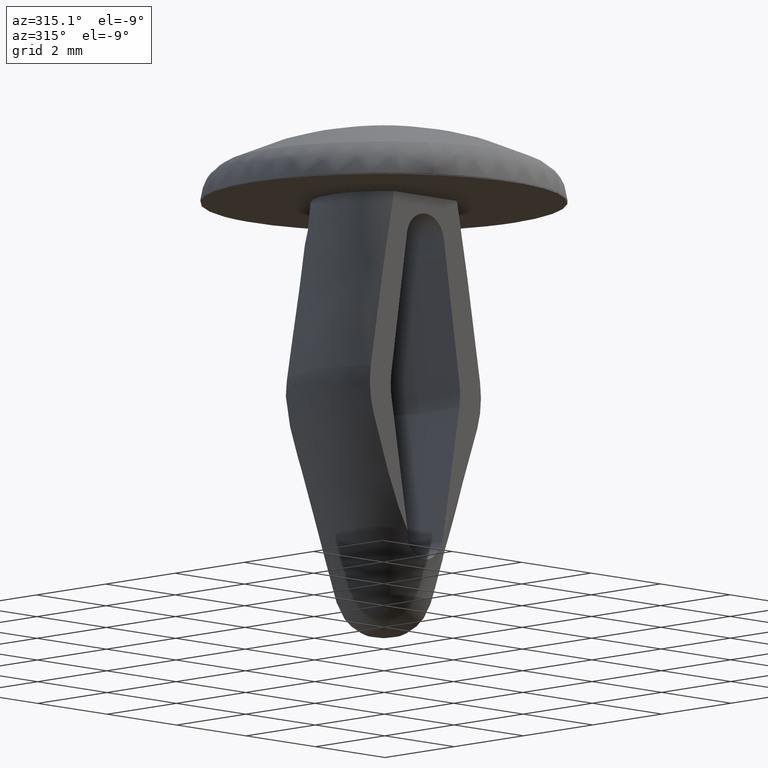
[diagram: clean part render]
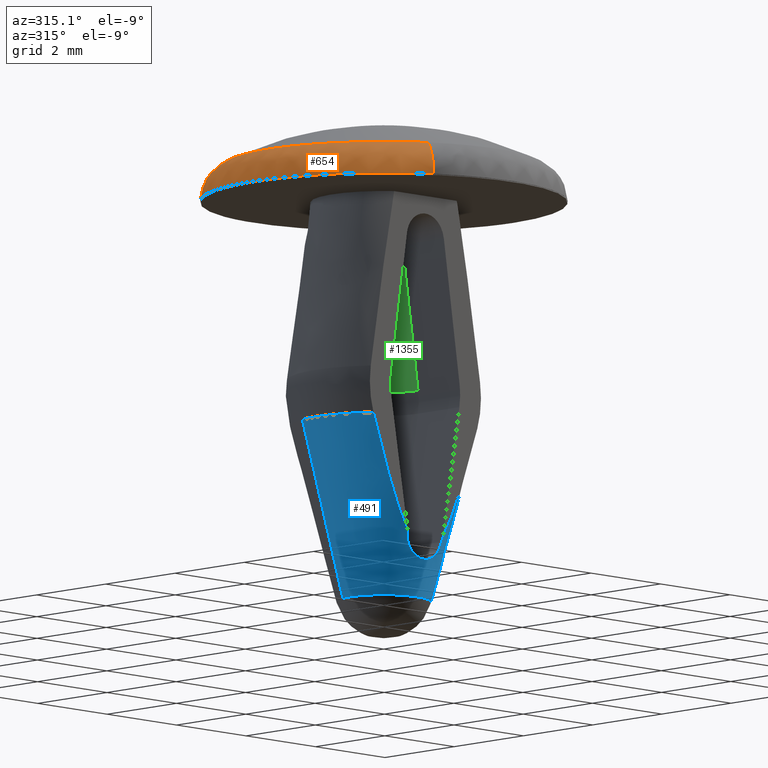
[diagram: same view with three faces highlighted in distinct colors, each labeled with its STEP entity id]
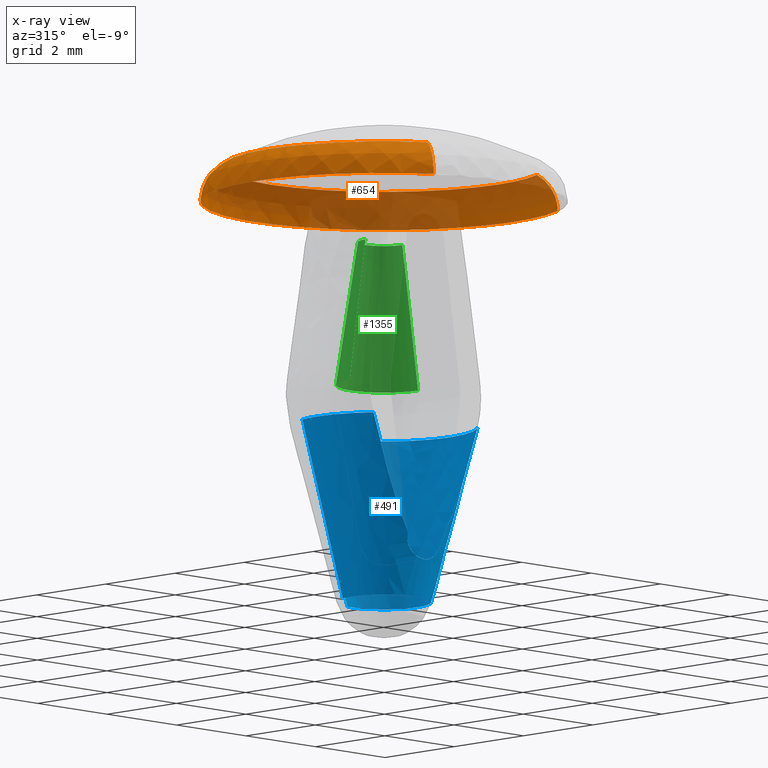
[diagram: x-ray of the same camera — body ghosted, the three highlighted faces saturated]
A machine part, auxiliary view with three faces highlighted in distinct colors.
The next image is the same camera in x-ray (body ghosted, the three faces saturated) — at least one of them is partly hidden behind the body in this view.
Their STEP definitions:

[orange] entity #654 — the highlighted face is a freeform B-spline surface patch.
#87=CARTESIAN_POINT('',(3.510539026099598,1.318565791391811,0.017877089325399));
#88=VERTEX_POINT('',#87);
#94=CARTESIAN_POINT('',(3.750000000000000,0.0,0.017877089325399));
#95=VERTEX_POINT('',#94);
#96=CARTESIAN_POINT('',(3.510539026099598,1.318565791391811,0.017877089325399));
#97=CARTESIAN_POINT('',(3.750000000000000,0.681026808057230,0.017877089325399));
#98=CARTESIAN_POINT('',(3.750000000000000,0.0,0.017877089325399));
#106=(BOUNDED_CURVE()B_SPLINE_CURVE(2,(#96,#97,#98),.UNSPECIFIED.,.F.,.U.)B_SPLINE_CURVE_WITH_KNOTS((3,3),(0.440284243453671,0.500000000000000),.UNSPECIFIED.)CURVE()GEOMETRIC_REPRESENTATION_ITEM()RATIONAL_B_SPLINE_CURVE((0.893499643425620,0.930038639405060,1.0))REPRESENTATION_ITEM(''));
#107=EDGE_CURVE('',#88,#95,#106,.T.);
#109=CARTESIAN_POINT('',(3.372770148349690,-1.639183186349112,0.017876415870131));
#110=VERTEX_POINT('',#109);
#111=CARTESIAN_POINT('',(3.750000000000000,0.0,0.017877089325399));
#112=CARTESIAN_POINT('',(3.750000000000000,-0.862998078234063,0.017877089325399));
#113=CARTESIAN_POINT('',(3.372770148349691,-1.639183186349112,0.017876415870131));
#121=(BOUNDED_CURVE()B_SPLINE_CURVE(2,(#111,#112,#113),.UNSPECIFIED.,.F.,.U.)B_SPLINE_CURVE_WITH_KNOTS((3,3),(0.500000000000000,0.574283252292223),.UNSPECIFIED.)CURVE()GEOMETRIC_REPRESENTATION_ITEM()RATIONAL_B_SPLINE_CURVE((1.0,0.912971756528796,0.877661440788156))REPRESENTATION_ITEM(''));
#122=EDGE_CURVE('',#95,#110,#121,.T.);
#124=CARTESIAN_POINT('',(-1.829396198044957,-3.273501113917875,0.017876435724999));
#125=VERTEX_POINT('',#124);
#141=CARTESIAN_POINT('',(-3.750000000000000,0.0,0.017877089325399));
#142=VERTEX_POINT('',#141);
#143=CARTESIAN_POINT('',(-1.829396198044957,-3.273501113917875,0.017876435724999));
#144=CARTESIAN_POINT('',(-3.750000000000000,-2.200171621396784,0.017877089325399));
#145=CARTESIAN_POINT('',(-3.750000000000000,0.0,0.017877089325399));
#153=(BOUNDED_CURVE()B_SPLINE_CURVE(2,(#143,#144,#145),.UNSPECIFIED.,.F.,.U.)B_SPLINE_CURVE_WITH_KNOTS((3,3),(0.833121380923220,1.0),.UNSPECIFIED.)CURVE()GEOMETRIC_REPRESENTATION_ITEM()RATIONAL_B_SPLINE_CURVE((0.869991202264870,0.804489536429831,1.0))REPRESENTATION_ITEM(''));
#154=EDGE_CURVE('',#125,#142,#153,.T.);
#156=CARTESIAN_POINT('',(-0.228929288348013,3.743005661354116,0.017877089325399));
#157=VERTEX_POINT('',#156);
#158=CARTESIAN_POINT('',(-3.750000000000000,0.0,0.017877089325399));
#159=CARTESIAN_POINT('',(-3.750000000000000,3.527650333265687,0.017877089325399));
#160=CARTESIAN_POINT('',(-0.228929288348013,3.743005661354115,0.017877089325399));
#168=(BOUNDED_CURVE()B_SPLINE_CURVE(2,(#158,#159,#160),.UNSPECIFIED.,.F.,.U.)B_SPLINE_CURVE_WITH_KNOTS((3,3),(0.0,0.239333088317014),.UNSPECIFIED.)CURVE()GEOMETRIC_REPRESENTATION_ITEM()RATIONAL_B_SPLINE_CURVE((1.0,0.719603845577062,0.976072311876173))REPRESENTATION_ITEM(''));
#169=EDGE_CURVE('',#142,#157,#168,.T.);
#241=CARTESIAN_POINT('',(-0.228929288348013,3.743005661354116,0.017877089325399));
#242=CARTESIAN_POINT('',(-0.114571491081727,3.750000000000000,0.017877089325399));
#243=CARTESIAN_POINT('',(0.0,3.750000000000000,0.017877089325399));
#244=CARTESIAN_POINT('',(2.597287258307362,3.750000000000000,0.017877089325399));
#245=CARTESIAN_POINT('',(3.510539026099598,1.318565791391811,0.017877089325399));
#253=(BOUNDED_CURVE()B_SPLINE_CURVE(2,(#241,#242,#243,#244,#245),.UNSPECIFIED.,.F.,.U.)B_SPLINE_CURVE_WITH_KNOTS((3,2,3),(0.239333088317014,0.250000000000000,0.440284243453671),.UNSPECIFIED.)CURVE()GEOMETRIC_REPRESENTATION_ITEM()RATIONAL_B_SPLINE_CURVE((0.976072311876173,0.987502935609486,1.0,0.777068141781487,0.893499643425620))REPRESENTATION_ITEM(''));
#254=EDGE_CURVE('',#157,#88,#253,.T.);
#543=CARTESIAN_POINT('',(-1.591512655966842,-2.847832264616427,0.755637287603313));
#544=CARTESIAN_POINT('',(-4.280872851317781,-1.344881813308519,0.755637287603313));
#545=CARTESIAN_POINT('',(-2.934193141263247,1.426033572976694,0.755637287603313));
#546=CARTESIAN_POINT('',(-1.508159568286553,4.360226714239937,0.755637287603313));
#547=CARTESIAN_POINT('',(1.426033572976693,2.934193141263247,0.755637287603313));
#548=CARTESIAN_POINT('',(4.360226714239937,1.508159568286554,0.755637287603313));
#549=CARTESIAN_POINT('',(2.934193141263247,-1.426033572976693,0.755637287603313));
#550=CARTESIAN_POINT('',(-1.843677931907815,-3.299053564144423,0.536403702894686));
#551=CARTESIAN_POINT('',(-4.959150513624517,-1.557969967078127,0.536403702894686));
#552=CARTESIAN_POINT('',(-3.399097784249745,1.651979718037227,0.536403702894686));
#553=CARTESIAN_POINT('',(-1.747118066212518,5.051077502286973,0.536403702894686));
#554=CARTESIAN_POINT('',(1.651979718037227,3.399097784249745,0.536403702894686));
#555=CARTESIAN_POINT('',(5.051077502286973,1.747118066212518,0.536403702894686));
#556=CARTESIAN_POINT('',(3.399097784249745,-1.651979718037227,0.536403702894686));
#557=CARTESIAN_POINT('',(-1.828823696632440,-3.272473586709232,-0.024242539129858));
#558=CARTESIAN_POINT('',(-4.919195385225735,-1.545417637822333,-0.024242539129858));
#559=CARTESIAN_POINT('',(-3.371711765608732,1.638669966384194,-0.024242539129858));
#560=CARTESIAN_POINT('',(-1.733041799224539,5.010381731992926,-0.024242539129858));
#561=CARTESIAN_POINT('',(1.638669966384193,3.371711765608732,-0.024242539129858));
#562=CARTESIAN_POINT('',(5.010381731992926,1.733041799224539,-0.024242539129858));
#563=CARTESIAN_POINT('',(3.371711765608732,-1.638669966384193,-0.024242539129858));
#571=(BOUNDED_SURFACE()B_SPLINE_SURFACE(2,2,((#543,#550,#557),(#544,#551,#558),(#545,#552,#559),(#546,#553,#560),(#547,#554,#561),(#548,#555,#562),(#549,#556,#563)),.UNSPECIFIED.,.F.,.F.,.U.)B_SPLINE_SURFACE_WITH_KNOTS((3,2,2,3),(3,3),(0.0,5.962804374219330,12.174058930697800,18.385313487176269),(0.0,1.010881933471071),.UNSPECIFIED.)GEOMETRIC_REPRESENTATION_ITEM()RATIONAL_B_SPLINE_SURFACE(((0.902153562236523,0.737319090539336,0.899431671622514),(0.663411191452622,0.542197866095908,0.661409611266244),(0.922913768391645,0.754286153534417,0.920129242088277),(0.652598584080163,0.533360854119304,0.650629626648659),(0.922913768391645,0.754286153534417,0.920129242088277),(0.652598584080163,0.533360854119304,0.650629626648659),(0.922913768391645,0.754286153534417,0.920129242088277)))REPRESENTATION_ITEM('')SURFACE());
#572=ORIENTED_EDGE('',*,*,#154,.F.);
#573=CARTESIAN_POINT('',(-1.610164701237870,-2.881207994377326,0.738222806541390));
#574=VERTEX_POINT('',#573);
#575=CARTESIAN_POINT('',(-1.610164701237869,-2.881207994377326,0.738222806541390));
#576=CARTESIAN_POINT('',(-1.829783382782837,-3.274192387028218,0.518723940167616));
#577=CARTESIAN_POINT('',(-1.829396198044957,-3.273501113917875,0.017876435724999));
#585=(BOUNDED_CURVE()B_SPLINE_CURVE(2,(#575,#576,#577),.UNSPECIFIED.,.F.,.U.)B_SPLINE_CURVE_WITH_KNOTS((3,3),(-1.658961963320588,-0.352996562778486),.UNSPECIFIED.)CURVE()GEOMETRIC_REPRESENTATION_ITEM()RATIONAL_B_SPLINE_CURVE((0.887856506844297,0.751492534627179,0.885381838788322))REPRESENTATION_ITEM(''));
#586=EDGE_CURVE('',#574,#125,#585,.T.);
#587=ORIENTED_EDGE('',*,*,#586,.F.);
#588=CARTESIAN_POINT('',(-3.300604470652410,0.0,0.738222806562486));
#589=VERTEX_POINT('',#588);
#590=CARTESIAN_POINT('',(-1.610164701237870,-2.881207994377326,0.738222806541390));
#591=CARTESIAN_POINT('',(-3.300604470652410,-1.936504782481875,0.738222806562486));
#592=CARTESIAN_POINT('',(-3.300604470652410,0.0,0.738222806562486));
#600=(BOUNDED_CURVE()B_SPLINE_CURVE(2,(#590,#591,#592),.UNSPECIFIED.,.F.,.U.)B_SPLINE_CURVE_WITH_KNOTS((3,3),(0.833121442956602,1.0),.UNSPECIFIED.)CURVE()GEOMETRIC_REPRESENTATION_ITEM()RATIONAL_B_SPLINE_CURVE((0.869991153567357,0.804489609106459,1.0))REPRESENTATION_ITEM(''));
#601=EDGE_CURVE('',#574,#589,#600,.T.);
#602=ORIENTED_EDGE('',*,*,#601,.T.);
#603=CARTESIAN_POINT('',(3.300604470652410,0.0,0.738222806562486));
#604=VERTEX_POINT('',#603);
#605=CARTESIAN_POINT('',(-3.300604470652410,0.0,0.738222806562486));
#606=CARTESIAN_POINT('',(-3.300604470652410,3.300604470652410,0.738222806562486));
#607=CARTESIAN_POINT('',(0.0,3.300604470652410,0.738222806562486));
#608=CARTESIAN_POINT('',(3.300604470652410,3.300604470652410,0.738222806562486));
#609=CARTESIAN_POINT('',(3.300604470652410,0.0,0.738222806562486));
#617=(BOUNDED_CURVE()B_SPLINE_CURVE(2,(#605,#606,#607,#608,#609),.UNSPECIFIED.,.F.,.U.)B_SPLINE_CURVE_WITH_KNOTS((3,2,3),(0.0,0.250000000000000,0.500000000000000),.UNSPECIFIED.)CURVE()GEOMETRIC_REPRESENTATION_ITEM()RATIONAL_B_SPLINE_CURVE((1.0,0.707106781186547,1.0,0.707106781186547,1.0))REPRESENTATION_ITEM(''));
#618=EDGE_CURVE('',#589,#604,#617,.T.);
#619=ORIENTED_EDGE('',*,*,#618,.T.);
#620=CARTESIAN_POINT('',(2.968580994263313,-1.442746253608641,0.738222806554177));
#621=VERTEX_POINT('',#620);
#622=CARTESIAN_POINT('',(3.300604470652410,0.0,0.738222806562486));
#623=CARTESIAN_POINT('',(3.300604470652409,-0.759577900720227,0.738222806562486));
#624=CARTESIAN_POINT('',(2.968580994263314,-1.442746253608641,0.738222806554177));
#632=(BOUNDED_CURVE()B_SPLINE_CURVE(2,(#622,#623,#624),.UNSPECIFIED.,.F.,.U.)B_SPLINE_CURVE_WITH_KNOTS((3,3),(0.500000000000000,0.574283295446815),.UNSPECIFIED.)CURVE()GEOMETRIC_REPRESENTATION_ITEM()RATIONAL_B_SPLINE_CURVE((1.0,0.912971705970046,0.877661399761368))REPRESENTATION_ITEM(''));
#633=EDGE_CURVE('',#604,#621,#632,.T.);
#634=ORIENTED_EDGE('',*,*,#633,.T.);
#635=CARTESIAN_POINT('',(2.968580994263314,-1.442746253608641,0.738222806554177));
#636=CARTESIAN_POINT('',(3.373482547783696,-1.639529996143984,0.518723934145808));
#637=CARTESIAN_POINT('',(3.372770148349690,-1.639183186349113,0.017876415870131));
#645=(BOUNDED_CURVE()B_SPLINE_CURVE(2,(#635,#636,#637),.UNSPECIFIED.,.F.,.U.)B_SPLINE_CURVE_WITH_KNOTS((3,3),(-1.658961963410473,-0.352996532280645),.UNSPECIFIED.)CURVE()GEOMETRIC_REPRESENTATION_ITEM()RATIONAL_B_SPLINE_CURVE((0.908287711582749,0.768785751268394,0.905756103259428))REPRESENTATION_ITEM(''));
#646=EDGE_CURVE('',#621,#110,#645,.T.);
#647=ORIENTED_EDGE('',*,*,#646,.T.);
#648=ORIENTED_EDGE('',*,*,#122,.F.);
#649=ORIENTED_EDGE('',*,*,#107,.F.);
#650=ORIENTED_EDGE('',*,*,#254,.F.);
#651=ORIENTED_EDGE('',*,*,#169,.F.);
#652=EDGE_LOOP('',(#572,#587,#602,#619,#634,#647,#648,#649,#650,#651));
#653=FACE_OUTER_BOUND('',#652,.T.);
#654=ADVANCED_FACE('',(#653),#571,.T.);

[blue] entity #491 — the highlighted face is a freeform B-spline surface patch.
#260=CARTESIAN_POINT('',(-0.911528233985496,0.243176951542734,-8.344574017766114));
#261=CARTESIAN_POINT('',(-0.955917012466961,0.076789369984153,-8.344574017766114));
#262=CARTESIAN_POINT('',(-0.938658069419487,-0.094550408925691,-8.344574017766114));
#263=CARTESIAN_POINT('',(-0.844107660493796,-1.033208478345178,-8.344574017766115));
#264=CARTESIAN_POINT('',(0.094550408925691,-0.938658069419487,-8.344574017766114));
#265=CARTESIAN_POINT('',(1.033208478345178,-0.844107660493796,-8.344574017766115));
#266=CARTESIAN_POINT('',(0.938658069419487,0.094550408925691,-8.344574017766114));
#267=CARTESIAN_POINT('',(0.844107660493796,1.033208478345178,-8.344574017766115));
#268=CARTESIAN_POINT('',(-0.094550408925691,0.938658069419487,-8.344574017766114));
#269=CARTESIAN_POINT('',(-1.876671869120881,0.500657387411307,-4.542523177169967));
#270=CARTESIAN_POINT('',(-1.968060340453882,0.158095432619445,-4.542523177169966));
#271=CARTESIAN_POINT('',(-1.932527296385310,-0.194662201376795,-4.542523177169967));
#272=CARTESIAN_POINT('',(-1.737865095008514,-2.127189497762105,-4.542523177169966));
#273=CARTESIAN_POINT('',(0.194662201376795,-1.932527296385310,-4.542523177169967));
#274=CARTESIAN_POINT('',(2.127189497762105,-1.737865095008514,-4.542523177169966));
#275=CARTESIAN_POINT('',(1.932527296385310,0.194662201376795,-4.542523177169967));
#276=CARTESIAN_POINT('',(1.737865095008514,2.127189497762105,-4.542523177169966));
#277=CARTESIAN_POINT('',(-0.194662201376795,1.932527296385310,-4.542523177169967));
#285=(BOUNDED_SURFACE()B_SPLINE_SURFACE(2,1,((#260,#269),(#261,#270),(#262,#271),(#263,#272),(#264,#273),(#265,#274),(#266,#275),(#267,#276),(#268,#277)),.UNSPECIFIED.,.F.,.F.,.U.)B_SPLINE_SURFACE_WITH_KNOTS((3,2,2,2,3),(2,2),(0.0,0.772348566580288,3.990467593998152,7.208586621416016,10.426705648833879),(0.0,3.931079877816691),.UNSPECIFIED.)GEOMETRIC_REPRESENTATION_ITEM()RATIONAL_B_SPLINE_SURFACE(((0.893152553776853,0.893152553776853),(0.929705627484771,0.929705627484771),(1.0,1.0),(0.707106781186548,0.707106781186548),(1.0,1.0),(0.707106781186548,0.707106781186548),(1.0,1.0),(0.707106781186548,0.707106781186548),(1.0,1.0)))REPRESENTATION_ITEM('')SURFACE());
#286=CARTESIAN_POINT('',(-1.496163553573590,-1.199999999999986,-4.635257124094320));
#287=VERTEX_POINT('',#286);
#288=CARTESIAN_POINT('',(-1.853130891334652,0.494377845045473,-4.635258875572371));
#289=VERTEX_POINT('',#288);
#290=CARTESIAN_POINT('',(-1.496163553573590,-1.199999999999986,-4.635257124094320));
#291=CARTESIAN_POINT('',(-2.103232487399047,-0.443104465872611,-4.635258116353674));
#292=CARTESIAN_POINT('',(-1.853130891334651,0.494377845045473,-4.635258875572371));
#300=(BOUNDED_CURVE()B_SPLINE_CURVE(2,(#290,#291,#292),.UNSPECIFIED.,.F.,.U.)B_SPLINE_CURVE_WITH_KNOTS((3,3),(0.0,0.206598656610425),.UNSPECIFIED.)CURVE()GEOMETRIC_REPRESENTATION_ITEM()RATIONAL_B_SPLINE_CURVE((1.0,0.834154077139532,0.873889423482797))REPRESENTATION_ITEM(''));
#301=EDGE_CURVE('',#287,#289,#300,.T.);
#302=ORIENTED_EDGE('',*,*,#301,.T.);
#303=CARTESIAN_POINT('',(-0.934494194395612,0.249302993966423,-8.254103557315123));
#304=VERTEX_POINT('',#303);
#305=CARTESIAN_POINT('',(-0.934494194395612,0.249302993966423,-8.254103557315123));
#306=CARTESIAN_POINT('',(-1.853130891334652,0.494377845045473,-4.635258875572371));
#307=QUASI_UNIFORM_CURVE('',1,(#305,#306),.UNSPECIFIED.,.F.,.U.);
#308=EDGE_CURVE('',#304,#289,#307,.T.);
#309=ORIENTED_EDGE('',*,*,#308,.F.);
#310=CARTESIAN_POINT('',(-0.967177202898201,0.0,-8.254102849637711));
#311=VERTEX_POINT('',#310);
#312=CARTESIAN_POINT('',(-0.967177202898201,0.0,-8.254102849637711));
#313=CARTESIAN_POINT('',(-0.967177202898201,0.126793827943123,-8.254102849637711));
#314=CARTESIAN_POINT('',(-0.934494194395612,0.249302993966423,-8.254103557315123));
#322=(BOUNDED_CURVE()B_SPLINE_CURVE(2,(#312,#313,#314),.UNSPECIFIED.,.F.,.U.)B_SPLINE_CURVE_WITH_KNOTS((3,3),(0.0,0.043962462404310),.UNSPECIFIED.)CURVE()GEOMETRIC_REPRESENTATION_ITEM()RATIONAL_B_SPLINE_CURVE((1.0,0.948494771517745,0.915103916401702))REPRESENTATION_ITEM(''));
#323=EDGE_CURVE('',#311,#304,#322,.T.);
#324=ORIENTED_EDGE('',*,*,#323,.F.);
#325=CARTESIAN_POINT('',(0.967177202898201,0.0,-8.254102849637711));
#326=VERTEX_POINT('',#325);
#327=CARTESIAN_POINT('',(0.967177202898201,0.0,-8.254102849637711));
#328=CARTESIAN_POINT('',(0.967177202898201,-0.967177202898201,-8.254102849637711));
#329=CARTESIAN_POINT('',(0.0,-0.967177202898201,-8.254102849637711));
#330=CARTESIAN_POINT('',(-0.967177202898201,-0.967177202898201,-8.254102849637711));
#331=CARTESIAN_POINT('',(-0.967177202898201,0.0,-8.254102849637711));
#339=(BOUNDED_CURVE()B_SPLINE_CURVE(2,(#327,#328,#329,#330,#331),.UNSPECIFIED.,.F.,.U.)B_SPLINE_CURVE_WITH_KNOTS((3,2,3),(0.500000000000000,0.750000000000000,1.0),.UNSPECIFIED.)CURVE()GEOMETRIC_REPRESENTATION_ITEM()RATIONAL_B_SPLINE_CURVE((1.0,0.707106781186547,1.0,0.707106781186547,1.0))REPRESENTATION_ITEM(''));
#340=EDGE_CURVE('',#326,#311,#339,.T.);
#341=ORIENTED_EDGE('',*,*,#340,.F.);
#342=CARTESIAN_POINT('',(-0.096932605070377,0.962307545372765,-8.254102849635547));
#343=VERTEX_POINT('',#342);
#344=CARTESIAN_POINT('',(-0.096932605070377,0.962307545372765,-8.254102849635547));
#345=CARTESIAN_POINT('',(-0.048588622396614,0.967177202898201,-8.254102849637711));
#346=CARTESIAN_POINT('',(0.0,0.967177202898201,-8.254102849637711));
#347=CARTESIAN_POINT('',(0.967177202898201,0.967177202898201,-8.254102849637711));
#348=CARTESIAN_POINT('',(0.967177202898201,0.0,-8.254102849637711));
#356=(BOUNDED_CURVE()B_SPLINE_CURVE(2,(#344,#345,#346,#347,#348),.UNSPECIFIED.,.F.,.U.)B_SPLINE_CURVE_WITH_KNOTS((3,2,3),(0.232600409897105,0.250000000000000,0.500000000000000),.UNSPECIFIED.)CURVE()GEOMETRIC_REPRESENTATION_ITEM()RATIONAL_B_SPLINE_CURVE((0.962067733926643,0.979615112194914,1.0,0.707106781186547,1.0))REPRESENTATION_ITEM(''));
#357=EDGE_CURVE('',#343,#326,#356,.T.);
#358=ORIENTED_EDGE('',*,*,#357,.F.);
#359=CARTESIAN_POINT('',(-0.192220907132986,1.908285629261297,-4.635259230446605));
#360=VERTEX_POINT('',#359);
#361=CARTESIAN_POINT('',(-0.096932605070377,0.962307545372765,-8.254102849635547));
#362=CARTESIAN_POINT('',(-0.192220907132986,1.908285629261297,-4.635259230446605));
#363=QUASI_UNIFORM_CURVE('',1,(#361,#362),.UNSPECIFIED.,.F.,.U.);
#364=EDGE_CURVE('',#343,#360,#363,.T.);
#365=ORIENTED_EDGE('',*,*,#364,.T.);
#366=CARTESIAN_POINT('',(1.917943262344400,-0.000000111524127,-4.635256153124296));
#367=VERTEX_POINT('',#366);
#368=CARTESIAN_POINT('',(-0.192220907132986,1.908285629261297,-4.635259230446605));
#369=CARTESIAN_POINT('',(0.670655794026616,1.995203075432844,-4.635258449610775));
#370=CARTESIAN_POINT('',(1.305840773213348,1.404736673732055,-4.635257514462345));
#371=CARTESIAN_POINT('',(1.917943342818645,0.835727623471763,-4.635256613296896));
#372=CARTESIAN_POINT('',(1.917943262344400,-0.000000111524127,-4.635256153124296));
#380=(BOUNDED_CURVE()B_SPLINE_CURVE(2,(#368,#369,#370,#371,#372),.UNSPECIFIED.,.F.,.U.)B_SPLINE_CURVE_WITH_KNOTS((3,2,3),(0.478695209469498,0.666666666666667,0.848806047577946),.UNSPECIFIED.)CURVE()GEOMETRIC_REPRESENTATION_ITEM()RATIONAL_B_SPLINE_CURVE((0.868395425824294,0.849106957897236,1.0,0.853788624708119,0.867362345683337))REPRESENTATION_ITEM(''));
#381=EDGE_CURVE('',#360,#367,#380,.T.);
#382=ORIENTED_EDGE('',*,*,#381,.T.);
#383=CARTESIAN_POINT('',(1.496163553573590,-1.199999999999986,-4.635257124094320));
#384=VERTEX_POINT('',#383);
#385=CARTESIAN_POINT('',(1.917943262344400,-0.000000111524127,-4.635256153124296));
#386=CARTESIAN_POINT('',(1.917943095596143,-0.674124177014775,-4.635256638609309));
#387=CARTESIAN_POINT('',(1.496163553573590,-1.199999999999986,-4.635257124094320));
#395=(BOUNDED_CURVE()B_SPLINE_CURVE(2,(#385,#386,#387),.UNSPECIFIED.,.F.,.U.)B_SPLINE_CURVE_WITH_KNOTS((3,3),(0.848806047577946,1.0),.UNSPECIFIED.)CURVE()GEOMETRIC_REPRESENTATION_ITEM()RATIONAL_B_SPLINE_CURVE((0.867362345683337,0.878629895364518,1.0))REPRESENTATION_ITEM(''));
#396=EDGE_CURVE('',#367,#384,#395,.T.);
#397=ORIENTED_EDGE('',*,*,#396,.T.);
#398=CARTESIAN_POINT('',(0.512706496416740,-1.199999999999986,-6.968496213359470));
#399=VERTEX_POINT('',#398);
#400=CARTESIAN_POINT('',(0.512706496416740,-1.199999999999986,-6.968496213359470));
#401=CARTESIAN_POINT('',(0.539548939427265,-1.199999999999986,-6.928366879778555));
#402=CARTESIAN_POINT('',(0.565221456946601,-1.199999999999986,-6.887310175369218));
#403=CARTESIAN_POINT('',(0.658487091444489,-1.199999999999986,-6.730688227418390));
#404=CARTESIAN_POINT('',(0.719753472279937,-1.199999999999986,-6.612521501663601));
#405=CARTESIAN_POINT('',(0.835361899258448,-1.199999999999986,-6.373237478768622));
#406=CARTESIAN_POINT('',(0.889509646669514,-1.199999999999986,-6.252037387785509));
#407=CARTESIAN_POINT('',(1.045448630968061,-1.199999999999986,-5.885665544974547));
#408=CARTESIAN_POINT('',(1.140882708428846,-1.199999999999986,-5.637784904346526));
#409=CARTESIAN_POINT('',(1.323905719919771,-1.199999999999986,-5.138680680158177));
#410=CARTESIAN_POINT('',(1.411285388156757,-1.199999999999986,-4.887275509577714));
#411=CARTESIAN_POINT('',(1.496163553573590,-1.199999999999986,-4.635257124094320));
#412=B_SPLINE_CURVE_WITH_KNOTS('',3,(#400,#401,#402,#403,#404,#405,#406,#407,#408,#409,#410,#411),.UNSPECIFIED.,.F.,.U.,(4,2,2,2,2,4),(0.602434054630709,0.625000000000000,0.687499999999999,0.749999999999999,0.875000000000000,1.0),.UNSPECIFIED.);
#413=EDGE_CURVE('',#399,#384,#412,.T.);
#414=ORIENTED_EDGE('',*,*,#413,.F.);
#415=CARTESIAN_POINT('',(0.492802392197806,-1.175320674523856,-7.084532847131261));
#416=VERTEX_POINT('',#415);
#417=CARTESIAN_POINT('',(0.512706496416740,-1.199999999999986,-6.968496213359470));
#418=CARTESIAN_POINT('',(0.506071317132453,-1.191783704903280,-7.007177165985229));
#419=CARTESIAN_POINT('',(0.499436487418532,-1.183557526478118,-7.045856080728409));
#420=CARTESIAN_POINT('',(0.492802392197806,-1.175320674523856,-7.084532847131261));
#421=B_SPLINE_CURVE_WITH_KNOTS('',3,(#417,#418,#419,#420),.UNSPECIFIED.,.F.,.U.,(4,4),(0.000000976039388,0.000121266283579),.UNSPECIFIED.);
#422=EDGE_CURVE('',#399,#416,#421,.T.);
#423=ORIENTED_EDGE('',*,*,#422,.T.);
#424=CARTESIAN_POINT('',(-0.492805000000000,-1.175319537540008,-7.084533000000000));
#425=VERTEX_POINT('',#424);
#426=CARTESIAN_POINT('',(0.492802392197806,-1.175320674523856,-7.084532847131261));
#427=CARTESIAN_POINT('',(0.487914217918405,-1.169251953640152,-7.113029435041780));
#428=CARTESIAN_POINT('',(0.480609830019476,-1.164382714923051,-7.140884199104532));
#429=CARTESIAN_POINT('',(0.461190862643049,-1.156836850075034,-7.195287250771619));
#430=CARTESIAN_POINT('',(0.448942485677384,-1.154148871721679,-7.222061662798796));
#431=CARTESIAN_POINT('',(0.419889532447054,-1.150785545151747,-7.273044803293007));
#432=CARTESIAN_POINT('',(0.403286155056236,-1.150102973981386,-7.297004417941547));
#433=CARTESIAN_POINT('',(0.365998331063620,-1.150135553785189,-7.341901332657541));
#434=CARTESIAN_POINT('',(0.345082728490972,-1.150867014579845,-7.363006132902763));
#435=CARTESIAN_POINT('',(0.300395699089639,-1.153082502925338,-7.400771680155127));
#436=CARTESIAN_POINT('',(0.276601394303101,-1.154554580905109,-7.417545808137469));
#437=CARTESIAN_POINT('',(0.226102969983249,-1.157638115765746,-7.446911948125763));
#438=CARTESIAN_POINT('',(0.199223818825233,-1.159256578070406,-7.459520986866301));
#439=CARTESIAN_POINT('',(0.144468834231024,-1.162041227317278,-7.479560715139928));
#440=CARTESIAN_POINT('',(0.116382700811088,-1.163223295349336,-7.487145869476676));
#441=CARTESIAN_POINT('',(0.058765836837351,-1.164857389451741,-7.497395936309064));
#442=CARTESIAN_POINT('',(0.029169633599838,-1.165299137604348,-7.499999209920109));
#443=CARTESIAN_POINT('',(-0.029141890314244,-1.165299364046444,-7.500000991166479));
#444=CARTESIAN_POINT('',(-0.058151246051658,-1.164869725498987,-7.497471291225062));
#445=CARTESIAN_POINT('',(-0.115873463744196,-1.163242477434767,-7.487270772411615));
#446=CARTESIAN_POINT('',(-0.144474691830313,-1.162040530293460,-7.479557386542203));
#447=CARTESIAN_POINT('',(-0.199156704356411,-1.159259854527369,-7.459548775428335));
#448=CARTESIAN_POINT('',(-0.225527191406230,-1.157672722167791,-7.447213453644058));
#449=CARTESIAN_POINT('',(-0.276300434078770,-1.154572655887380,-7.417756775784318));
#450=CARTESIAN_POINT('',(-0.300393770728792,-1.153083091794362,-7.400763600048089));
#451=CARTESIAN_POINT('',(-0.344849278817070,-1.150876856492725,-7.363217726445840));
#452=CARTESIAN_POINT('',(-0.365413133356729,-1.150145066363417,-7.342552856415042));
#453=CARTESIAN_POINT('',(-0.403102649147116,-1.150092548769704,-7.297283889855607));
#454=CARTESIAN_POINT('',(-0.419828184496801,-1.150788138957933,-7.273111177724878));
#455=CARTESIAN_POINT('',(-0.448622936874544,-1.154099705755678,-7.222672564449372));
#456=CARTESIAN_POINT('',(-0.460798476427795,-1.156713442819398,-7.196280105155565));
#457=CARTESIAN_POINT('',(-0.480572119171682,-1.164335461805389,-7.141108744884165));
#458=CARTESIAN_POINT('',(-0.487915439921192,-1.169249102632604,-7.113037682227805));
#459=CARTESIAN_POINT('',(-0.492805000000000,-1.175319537540008,-7.084533000000000));
#460=B_SPLINE_CURVE_WITH_KNOTS('',3,(#426,#427,#428,#429,#430,#431,#432,#433,#434,#435,#436,#437,#438,#439,#440,#441,#442,#443,#444,#445,#446,#447,#448,#449,#450,#451,#452,#453,#454,#455,#456,#457,#458,#459),.UNSPECIFIED.,.F.,.U.,(4,2,2,2,2,2,2,2,2,2,2,2,2,2,2,2,4),(0.0,0.062500000000000,0.125000000000000,0.187500000000000,0.250000000000000,0.312500000000000,0.375000000000000,0.437500000000000,0.500000000000000,0.562500000000000,0.625000000000000,0.687500000000000,0.750000000000000,0.812500000000000,0.875000000000000,0.937500000000000,0.999999812182480),.UNSPECIFIED.);
#461=EDGE_CURVE('',#416,#425,#460,.T.);
#462=ORIENTED_EDGE('',*,*,#461,.T.);
#463=CARTESIAN_POINT('',(-0.512710290466270,-1.199999999999986,-6.968490539491700));
#464=VERTEX_POINT('',#463);
#465=CARTESIAN_POINT('',(-0.492804999999988,-1.175319537540008,-7.084532999999997));
#466=CARTESIAN_POINT('',(-0.499439731400072,-1.183556662629999,-7.045854310142100));
#467=CARTESIAN_POINT('',(-0.506074836142310,-1.191783273171065,-7.007173443800403));
#468=CARTESIAN_POINT('',(-0.512710290466270,-1.199999999999986,-6.968490539491700));
#469=B_SPLINE_CURVE_WITH_KNOTS('',3,(#465,#466,#467,#468),.UNSPECIFIED.,.F.,.U.,(4,4),(0.000000207342945,0.000120503637387),.UNSPECIFIED.);
#470=EDGE_CURVE('',#425,#464,#469,.T.);
#471=ORIENTED_EDGE('',*,*,#470,.T.);
#472=CARTESIAN_POINT('',(-1.496163553573590,-1.199999999999986,-4.635257124094320));
#473=CARTESIAN_POINT('',(-1.410482267054769,-1.199999999999986,-4.889657451354077));
#474=CARTESIAN_POINT('',(-1.322328292036034,-1.199999999999986,-5.143234330391599));
#475=CARTESIAN_POINT('',(-1.183507218095741,-1.199999999999986,-5.521405027374281));
#476=CARTESIAN_POINT('',(-1.136117386075713,-1.199999999999985,-5.647090232125320));
#477=CARTESIAN_POINT('',(-1.038165091085933,-1.199999999999986,-5.897404100411047));
#478=CARTESIAN_POINT('',(-0.987587511923265,-1.199999999999986,-6.022116752943382));
#479=CARTESIAN_POINT('',(-0.881804439662478,-1.199999999999986,-6.269533393824061));
#480=CARTESIAN_POINT('',(-0.826670979424295,-1.199999999999986,-6.392213832692384));
#481=CARTESIAN_POINT('',(-0.708762062715680,-1.199999999999986,-6.634070993655889));
#482=CARTESIAN_POINT('',(-0.646116154428506,-1.199999999999986,-6.753397991140904));
#483=CARTESIAN_POINT('',(-0.555953217047125,-1.199999999999986,-6.902013199041508));
#484=CARTESIAN_POINT('',(-0.534760855019197,-1.199999999999986,-6.935521912456437));
#485=CARTESIAN_POINT('',(-0.512710290466270,-1.199999999999986,-6.968490539491700));
#486=B_SPLINE_CURVE_WITH_KNOTS('',3,(#472,#473,#474,#475,#476,#477,#478,#479,#480,#481,#482,#483,#484,#485),.UNSPECIFIED.,.F.,.U.,(4,2,2,2,2,2,4),(0.0,0.125000000000000,0.187500000000000,0.250000000000000,0.312500000000000,0.375000000000000,0.393470908991343),.UNSPECIFIED.);
#487=EDGE_CURVE('',#287,#464,#486,.T.);
#488=ORIENTED_EDGE('',*,*,#487,.F.);
#489=EDGE_LOOP('',(#302,#309,#324,#341,#358,#365,#382,#397,#414,#423,#462,#471,#488));
#490=FACE_OUTER_BOUND('',#489,.T.);
#491=ADVANCED_FACE('',(#490),#285,.T.);

[green] entity #1355 — the highlighted face is a freeform B-spline surface patch.
#1254=CARTESIAN_POINT('',(-0.982788363668221,0.0,-3.773422000000000));
#1255=VERTEX_POINT('',#1254);
#1256=CARTESIAN_POINT('',(0.982788363668221,0.0,-3.773422000000000));
#1257=VERTEX_POINT('',#1256);
#1258=CARTESIAN_POINT('',(-0.982788363668221,0.0,-3.773422000000000));
#1259=CARTESIAN_POINT('',(-0.982788000000000,0.982788000000000,-3.773421999999999));
#1260=CARTESIAN_POINT('',(0.0,0.982788000000000,-3.773422000000000));
#1261=CARTESIAN_POINT('',(0.982788000000000,0.982788000000000,-3.773421999999999));
#1262=CARTESIAN_POINT('',(0.982788363668221,0.0,-3.773422000000000));
#1270=(BOUNDED_CURVE()B_SPLINE_CURVE(2,(#1258,#1259,#1260,#1261,#1262),.UNSPECIFIED.,.F.,.U.)B_SPLINE_CURVE_WITH_KNOTS((3,2,3),(0.0,0.500000000000000,1.0),.UNSPECIFIED.)CURVE()GEOMETRIC_REPRESENTATION_ITEM()RATIONAL_B_SPLINE_CURVE((1.0,0.707106781186548,1.0,0.707106781186548,1.0))REPRESENTATION_ITEM(''));
#1271=EDGE_CURVE('',#1255,#1257,#1270,.T.);
#1303=CARTESIAN_POINT('',(0.519979080075941,-0.013616131408487,-0.745850799999955));
#1304=CARTESIAN_POINT('',(0.994013026673643,-0.026029147155228,-3.849111280000002));
#1305=CARTESIAN_POINT('',(0.534327488737419,0.534327488737417,-0.745850799999955));
#1306=CARTESIAN_POINT('',(1.021442024623836,1.021442024623833,-3.849111280000003));
#1307=CARTESIAN_POINT('',(-0.013616131408486,0.519979080075941,-0.745850799999955));
#1308=CARTESIAN_POINT('',(-0.026029147155225,0.994013026673643,-3.849111280000002));
#1309=CARTESIAN_POINT('',(-0.561559751554391,0.505630671414465,-0.745850799999955));
#1310=CARTESIAN_POINT('',(-1.073500318934285,0.966584028723454,-3.849111280000003));
#1311=CARTESIAN_POINT('',(-0.518553853560756,-0.040811073355714,-0.745850799999955));
#1312=CARTESIAN_POINT('',(-0.991288506060529,-0.078016097382588,-3.849111280000002));
#1320=(BOUNDED_SURFACE()B_SPLINE_SURFACE(1,2,((#1303,#1305,#1307,#1309,#1311),(#1304,#1306,#1308,#1310,#1312)),.UNSPECIFIED.,.F.,.F.,.U.)B_SPLINE_SURFACE_WITH_KNOTS((2,2),(3,2,3),(0.0,3.139281426093724),(0.0,1.0,2.0),.UNSPECIFIED.)GEOMETRIC_REPRESENTATION_ITEM()RATIONAL_B_SPLINE_SURFACE(((1.0,0.688354575693754,1.0,0.688354575693754,1.0),(1.0,0.688354575693754,1.0,0.688354575693754,1.0)))REPRESENTATION_ITEM('')SURFACE());
#1321=CARTESIAN_POINT('',(-0.531441000000000,0.0,-0.819693999999956));
#1322=VERTEX_POINT('',#1321);
#1323=CARTESIAN_POINT('',(0.531441000000000,-2.168404E-016,-0.819693999999956));
#1324=VERTEX_POINT('',#1323);
#1325=CARTESIAN_POINT('',(-0.531441000000000,0.0,-0.819693999999956));
#1326=CARTESIAN_POINT('',(-0.531441000000000,0.306827604408404,-0.819693999999956));
#1327=CARTESIAN_POINT('',(-0.265720500000000,0.460241406612606,-0.819693999999956));
#1328=CARTESIAN_POINT('',(5.421011E-017,0.613655208816808,-0.819693999999956));
#1329=CARTESIAN_POINT('',(0.265720500000000,0.460241406612606,-0.819693999999956));
#1330=CARTESIAN_POINT('',(0.531441000000000,0.306827604408404,-0.819693999999956));
#1331=CARTESIAN_POINT('',(0.531441000000000,0.0,-0.819693999999956));
#1339=(BOUNDED_CURVE()B_SPLINE_CURVE(2,(#1325,#1326,#1327,#1328,#1329,#1330,#1331),.UNSPECIFIED.,.F.,.U.)B_SPLINE_CURVE_WITH_KNOTS((3,2,2,3),(0.0,0.333333333333333,0.666666666666667,1.0),.UNSPECIFIED.)CURVE()GEOMETRIC_REPRESENTATION_ITEM()RATIONAL_B_SPLINE_CURVE((1.0,0.866025403784438,1.0,0.866025403784438,1.0,0.866025403784438,1.0))REPRESENTATION_ITEM(''));
#1340=EDGE_CURVE('',#1322,#1324,#1339,.T.);
#1341=ORIENTED_EDGE('',*,*,#1340,.F.);
#1342=CARTESIAN_POINT('',(-0.531441000000000,0.0,-0.819693999999956));
#1343=CARTESIAN_POINT('',(-0.982788363668221,0.0,-3.773422000000000));
#1344=QUASI_UNIFORM_CURVE('',1,(#1342,#1343),.UNSPECIFIED.,.F.,.U.);
#1345=EDGE_CURVE('',#1322,#1255,#1344,.T.);
#1346=ORIENTED_EDGE('',*,*,#1345,.T.);
#1347=ORIENTED_EDGE('',*,*,#1271,.T.);
#1348=CARTESIAN_POINT('',(0.982788363668221,0.0,-3.773422000000000));
#1349=CARTESIAN_POINT('',(0.531441000000000,-2.168404E-016,-0.819693999999956));
#1350=QUASI_UNIFORM_CURVE('',1,(#1348,#1349),.UNSPECIFIED.,.F.,.U.);
#1351=EDGE_CURVE('',#1257,#1324,#1350,.T.);
#1352=ORIENTED_EDGE('',*,*,#1351,.T.);
#1353=EDGE_LOOP('',(#1341,#1346,#1347,#1352));
#1354=FACE_OUTER_BOUND('',#1353,.T.);
#1355=ADVANCED_FACE('',(#1354),#1320,.F.);